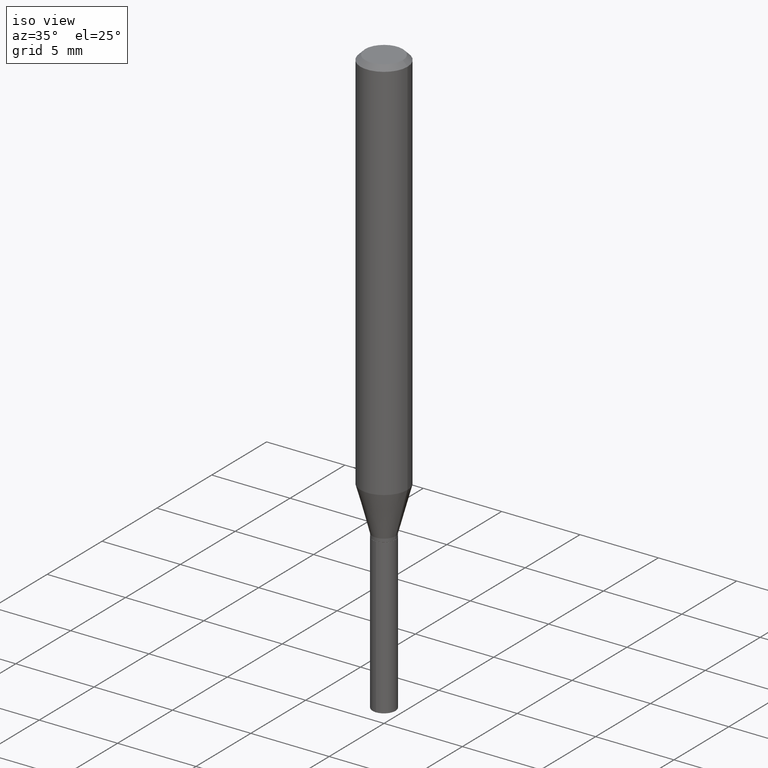
[diagram: clean part render]
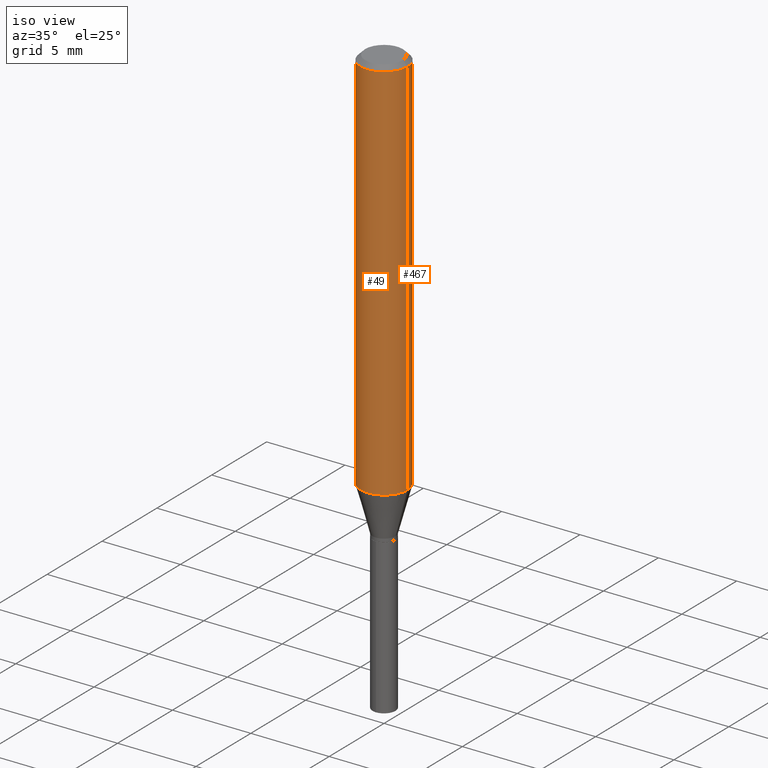
[diagram: same view with one multi-face feature highlighted, each face labeled with its STEP entity id]
A machine part, iso view. The highlighted faces form ONE feature: a constant-radius fillet chain: 2 tangent blend faces with common blend radius 1.4999 mm. The faces share edges in the B-rep.
Their STEP definitions:
[1] entity #49 (Cylinder):
#15 = ORIENTED_EDGE ( 'NONE', *, *, #134, .T. ) ;
#18 = AXIS2_PLACEMENT_3D ( 'NONE', #159, #151, #58 ) ;
#33 = ORIENTED_EDGE ( 'NONE', *, *, #265, .F. ) ;
#46 = VERTEX_POINT ( 'NONE', #420 ) ;
#49 = ADVANCED_FACE ( 'NONE', ( #430 ), #94, .T. ) ;
#58 = DIRECTION ( 'NONE',  ( 1.000000000000000000, -6.982962677686266711E-15, 4.876176775795935793E-29 ) ) ;
#60 = CARTESIAN_POINT ( 'NONE',  ( 0.05905000000000006077, -4.123439461173744764E-16, 2.879382386107503023E-30 ) ) ;
#64 = CARTESIAN_POINT ( 'NONE',  ( 2.378998177496304355E-29, -3.396578897617461256E-15, -0.9728188605306625769 ) ) ;
#88 = VERTEX_POINT ( 'NONE', #90 ) ;
#90 = CARTESIAN_POINT ( 'NONE',  ( -0.05905000000000011628, -2.977003412151120974E-15, -0.9728188605306625769 ) ) ;
#94 = CYLINDRICAL_SURFACE ( 'NONE', #18, 0.05905000000000006077 ) ;
#97 = LINE ( 'NONE', #60, #445 ) ;
#105 = CIRCLE ( 'NONE', #253, 0.05904999999999999832 ) ;
#116 = EDGE_LOOP ( 'NONE', ( #246, #15, #147, #33 ) ) ;
#134 = EDGE_CURVE ( 'NONE', #88, #177, #291, .T. ) ;
#147 = ORIENTED_EDGE ( 'NONE', *, *, #225, .T. ) ;
#151 = DIRECTION ( 'NONE',  ( -2.445468806185136597E-29, 3.491481338843145583E-15, 1.000000000000000000 ) ) ;
#159 = CARTESIAN_POINT ( 'NONE',  ( 0.000000000000000000, 0.000000000000000000, 0.000000000000000000 ) ) ;
#177 = VERTEX_POINT ( 'NONE', #355 ) ;
#178 = LINE ( 'NONE', #221, #204 ) ;
#201 = DIRECTION ( 'NONE',  ( -2.445468806185136877E-29, 3.491481338843145188E-15, 1.000000000000000000 ) ) ;
#204 = VECTOR ( 'NONE', #254, 39.37007874015748143 ) ;
#221 = CARTESIAN_POINT ( 'NONE',  ( -0.05905000000000006077, 4.195754854663395916E-16, -2.904631170795524694E-30 ) ) ;
#225 = EDGE_CURVE ( 'NONE', #177, #46, #97, .T. ) ;
#246 = ORIENTED_EDGE ( 'NONE', *, *, #375, .F. ) ;
#253 = AXIS2_PLACEMENT_3D ( 'NONE', #293, #404, #322 ) ;
#254 = DIRECTION ( 'NONE',  ( -2.445468806185136877E-29, 3.491481338843145188E-15, 1.000000000000000000 ) ) ;
#265 = EDGE_CURVE ( 'NONE', #447, #46, #105, .T. ) ;
#268 = AXIS2_PLACEMENT_3D ( 'NONE', #64, #439, #324 ) ;
#291 = CIRCLE ( 'NONE', #268, 0.05905000000000011628 ) ;
#293 = CARTESIAN_POINT ( 'NONE',  ( 2.888098660104664642E-31, -4.123439461173780879E-17, -0.01181000000000007565 ) ) ;
#322 = DIRECTION ( 'NONE',  ( 1.000000000000000000, -6.982962677686266711E-15, 0.000000000000000000 ) ) ;
#324 = DIRECTION ( 'NONE',  ( 1.000000000000000000, -6.982962677686266711E-15, 0.000000000000000000 ) ) ;
#355 = CARTESIAN_POINT ( 'NONE',  ( 0.05905000000000011628, -3.808922843734835781E-15, -0.9728188605306625769 ) ) ;
#375 = EDGE_CURVE ( 'NONE', #88, #447, #178, .T. ) ;
#404 = DIRECTION ( 'NONE',  ( -2.445468806185136597E-29, 3.491481338843145583E-15, 1.000000000000000000 ) ) ;
#420 = CARTESIAN_POINT ( 'NONE',  ( 0.05904999999999999832, -4.535783407291118600E-16, -0.01181000000000007565 ) ) ;
#427 = CARTESIAN_POINT ( 'NONE',  ( -0.05904999999999999832, -1.299331160648259210E-15, -0.01181000000000007565 ) ) ;
#430 = FACE_OUTER_BOUND ( 'NONE', #116, .T. ) ;
#439 = DIRECTION ( 'NONE',  ( -2.445468806185136597E-29, 3.491481338843145583E-15, 1.000000000000000000 ) ) ;
#445 = VECTOR ( 'NONE', #201, 39.37007874015748143 ) ;
#447 = VERTEX_POINT ( 'NONE', #427 ) ;
[2] entity #467 (Cylinder):
#4 = ORIENTED_EDGE ( 'NONE', *, *, #352, .T. ) ;
#46 = VERTEX_POINT ( 'NONE', #420 ) ;
#60 = CARTESIAN_POINT ( 'NONE',  ( 0.05905000000000006077, -4.123439461173744764E-16, 2.879382386107503023E-30 ) ) ;
#61 = EDGE_LOOP ( 'NONE', ( #4, #223, #215, #304 ) ) ;
#88 = VERTEX_POINT ( 'NONE', #90 ) ;
#90 = CARTESIAN_POINT ( 'NONE',  ( -0.05905000000000011628, -2.977003412151120974E-15, -0.9728188605306625769 ) ) ;
#97 = LINE ( 'NONE', #60, #445 ) ;
#140 = DIRECTION ( 'NONE',  ( -2.445468806185136597E-29, 3.491481338843145583E-15, 1.000000000000000000 ) ) ;
#143 = CARTESIAN_POINT ( 'NONE',  ( 2.888098660104664642E-31, -4.123439461173780879E-17, -0.01181000000000007565 ) ) ;
#160 = FACE_OUTER_BOUND ( 'NONE', #61, .T. ) ;
#177 = VERTEX_POINT ( 'NONE', #355 ) ;
#178 = LINE ( 'NONE', #221, #204 ) ;
#201 = DIRECTION ( 'NONE',  ( -2.445468806185136877E-29, 3.491481338843145188E-15, 1.000000000000000000 ) ) ;
#204 = VECTOR ( 'NONE', #254, 39.37007874015748143 ) ;
#215 = ORIENTED_EDGE ( 'NONE', *, *, #294, .F. ) ;
#221 = CARTESIAN_POINT ( 'NONE',  ( -0.05905000000000006077, 4.195754854663395916E-16, -2.904631170795524694E-30 ) ) ;
#223 = ORIENTED_EDGE ( 'NONE', *, *, #375, .T. ) ;
#225 = EDGE_CURVE ( 'NONE', #177, #46, #97, .T. ) ;
#235 = DIRECTION ( 'NONE',  ( -2.445468806185136597E-29, 3.491481338843145583E-15, 1.000000000000000000 ) ) ;
#254 = DIRECTION ( 'NONE',  ( -2.445468806185136877E-29, 3.491481338843145188E-15, 1.000000000000000000 ) ) ;
#292 = AXIS2_PLACEMENT_3D ( 'NONE', #432, #235, #424 ) ;
#294 = EDGE_CURVE ( 'NONE', #46, #447, #422, .T. ) ;
#297 = CARTESIAN_POINT ( 'NONE',  ( 2.378998177496304355E-29, -3.396578897617461256E-15, -0.9728188605306625769 ) ) ;
#304 = ORIENTED_EDGE ( 'NONE', *, *, #225, .F. ) ;
#339 = CIRCLE ( 'NONE', #390, 0.05905000000000011628 ) ;
#343 = CYLINDRICAL_SURFACE ( 'NONE', #292, 0.05905000000000006077 ) ;
#352 = EDGE_CURVE ( 'NONE', #177, #88, #339, .T. ) ;
#355 = CARTESIAN_POINT ( 'NONE',  ( 0.05905000000000011628, -3.808922843734835781E-15, -0.9728188605306625769 ) ) ;
#375 = EDGE_CURVE ( 'NONE', #88, #447, #178, .T. ) ;
#390 = AXIS2_PLACEMENT_3D ( 'NONE', #297, #406, #408 ) ;
#406 = DIRECTION ( 'NONE',  ( -2.445468806185136597E-29, 3.491481338843145583E-15, 1.000000000000000000 ) ) ;
#408 = DIRECTION ( 'NONE',  ( 1.000000000000000000, -6.982962677686266711E-15, 0.000000000000000000 ) ) ;
#420 = CARTESIAN_POINT ( 'NONE',  ( 0.05904999999999999832, -4.535783407291118600E-16, -0.01181000000000007565 ) ) ;
#422 = CIRCLE ( 'NONE', #431, 0.05904999999999999832 ) ;
#424 = DIRECTION ( 'NONE',  ( 1.000000000000000000, -6.982962677686266711E-15, 4.876176775795935793E-29 ) ) ;
#427 = CARTESIAN_POINT ( 'NONE',  ( -0.05904999999999999832, -1.299331160648259210E-15, -0.01181000000000007565 ) ) ;
#431 = AXIS2_PLACEMENT_3D ( 'NONE', #143, #140, #449 ) ;
#432 = CARTESIAN_POINT ( 'NONE',  ( 0.000000000000000000, 0.000000000000000000, 0.000000000000000000 ) ) ;
#445 = VECTOR ( 'NONE', #201, 39.37007874015748143 ) ;
#447 = VERTEX_POINT ( 'NONE', #427 ) ;
#449 = DIRECTION ( 'NONE',  ( 1.000000000000000000, -6.982962677686266711E-15, 0.000000000000000000 ) ) ;
#467 = ADVANCED_FACE ( 'NONE', ( #160 ), #343, .T. ) ;